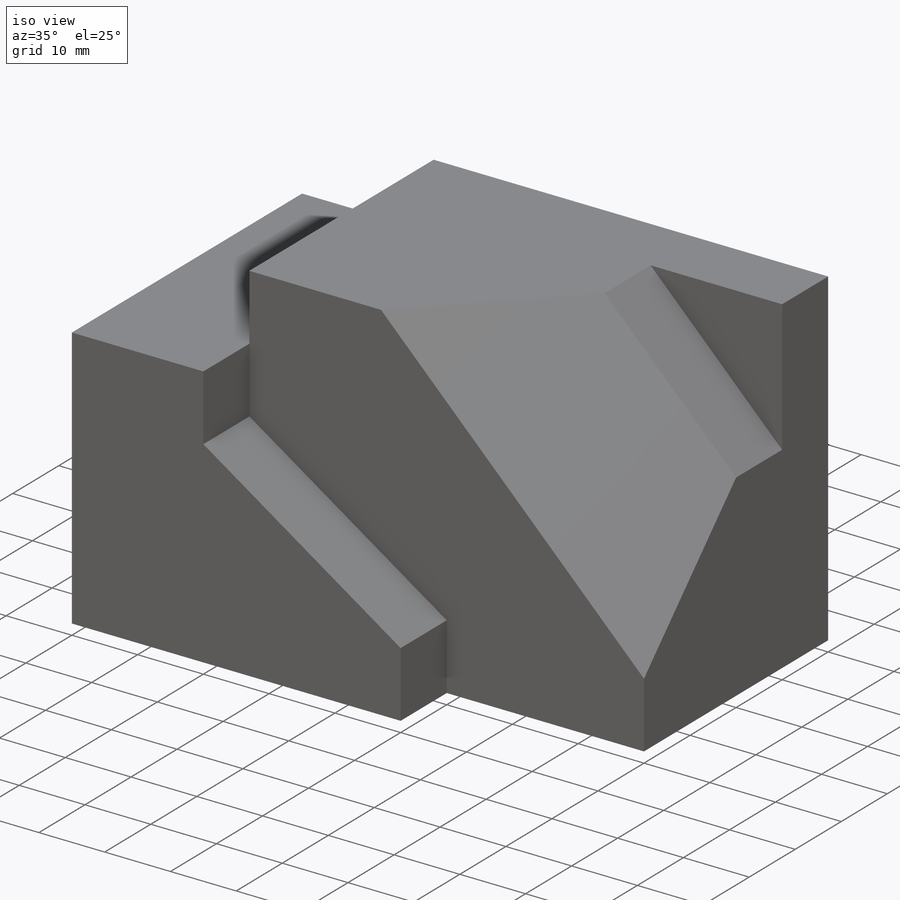
[diagram: iso view]
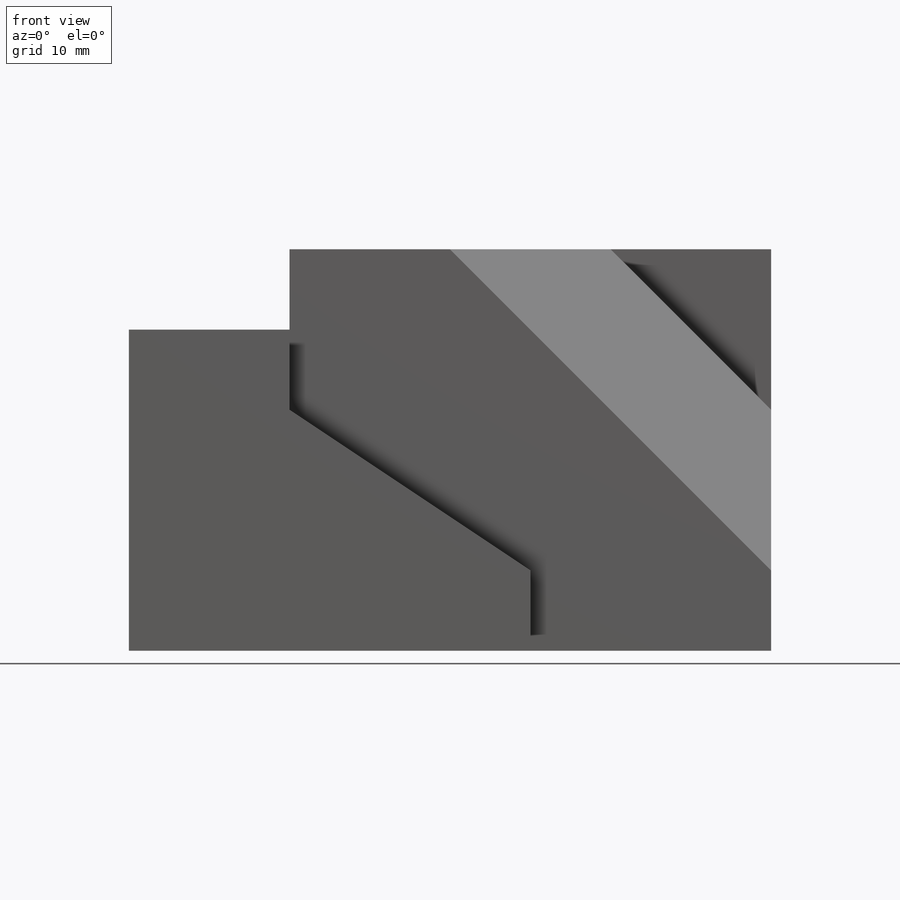
[diagram: front view]
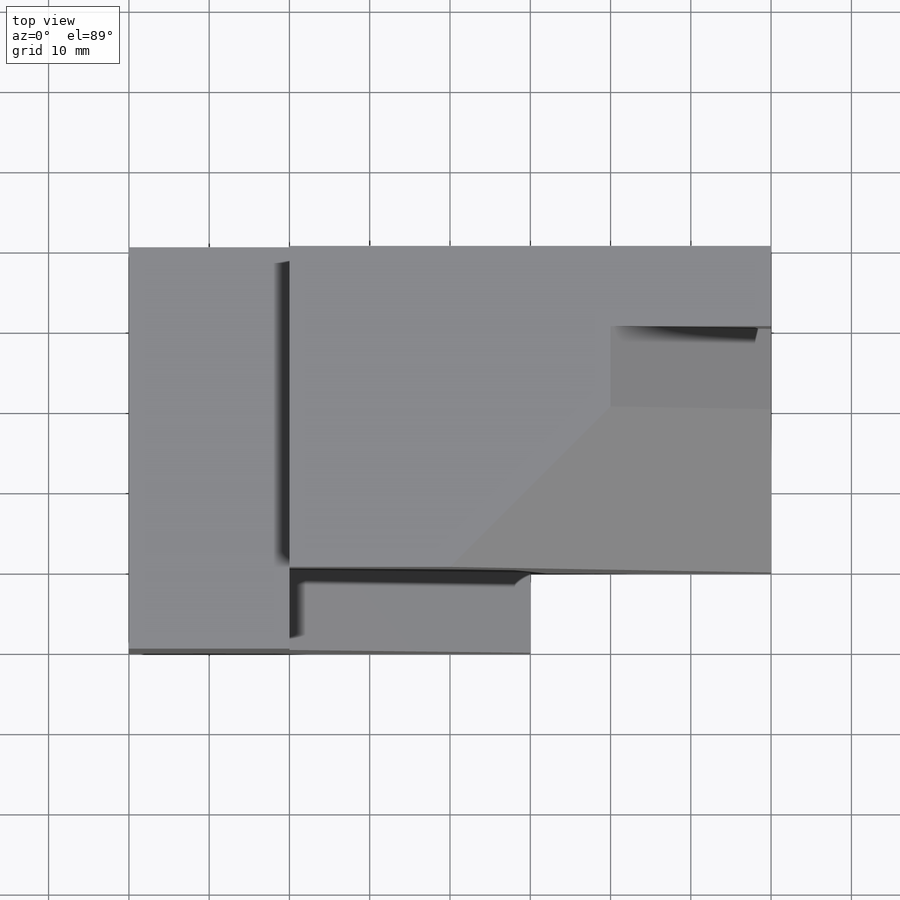
[diagram: top view]
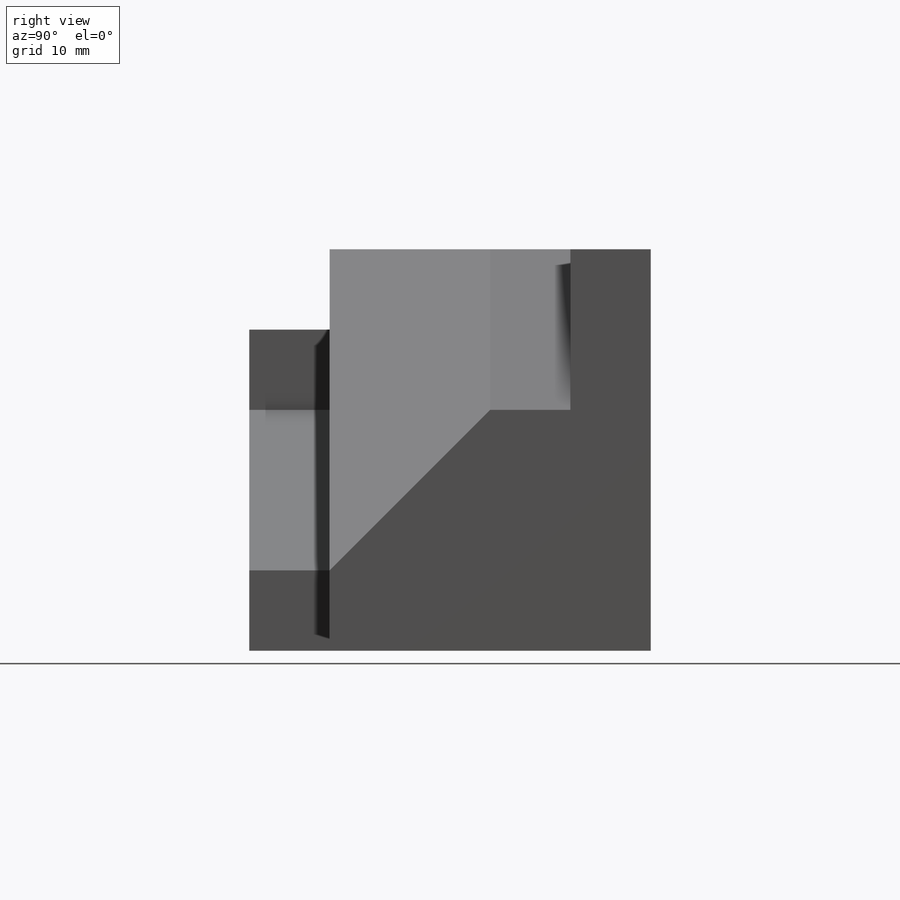
[diagram: right view]
SOLIDWORKS PART (.sldprt)
format: sldprt  version: not decoded by parser v0  size: 202,752 bytes
history: native  units: mm
features: sketch x8, extrude x3, cut_extrude x3, plane x2, material x1 (+13 scaffold rows collapsed)
feature tree (30):
  scaffold x13  (default folders/planes/origin — collapsed)
  material  "Material <not specified>"
  sketch  "Sketch2"  dims[D1=80.0mm D2=50.0mm]
  extrude  "Boss-Extrude1"  Depth=10mm
  sketch  "Sketch3"  dims[D1=30.0mm D2=10.0mm]
  cut_extrude  "Cut-Extrude1"  Depth=10mm
  sketch  "Sketch4"  dims[D1=60.0mm D2=40.0mm]
  extrude  "Boss-Extrude2"  Depth=40mm
  sketch  "Sketch5"  dims[D1=30.0mm D2=20.0mm D3=10.0mm D4=20.0mm D5=30.0mm]
  extrude  "Boss-Extrude3"  Depth=50mm
  plane  "Plane1"  Offset=40mm
  sketch  "Sketch6"  dims[D1=20.0mm D2=20.0mm]
  cut_extrude  "Cut-Extrude2"  Depth=50mm
  sketch  "Sketch7"  dims[D1=20.0mm D2=10.0mm]
  sketch  "Sketch8"  dims[D1=10.0mm]
  plane  "Plane2"
  sketch  "Sketch9"
  cut_extrude  "Cut-Extrude3"  Depth=50mm
decode coverage: 13 of 14 modeling features carry decoded parameters
note: suppression state not decoded; provenance and decode notes live in map.json
